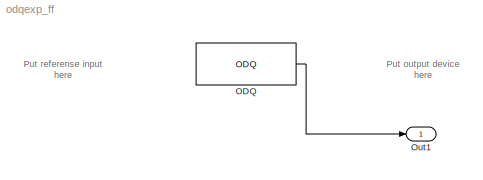
MODEL odqexp_ff
KIND model
BLOCK [Reference] ODQ  REF=odqblock/ODQ  (lib defined in mdl_3284093aac4b)
  A = 0
  B1 = 0
  B2 = 0
  C = 0
  FunctionWithSeparateData = off
  GeneratePreprocessorConditionals = off
  Ports = [1, 1]
  RTWMemSecDataConstants = Inherit from model
  RTWMemSecDataInternal = Inherit from model
  RTWMemSecDataParameters = Inherit from model
  RTWMemSecFuncExecute = Inherit from model
  RTWMemSecFuncInitTerm = Inherit from model
  SID = 2
  ShowPortLabels = FromPortIcon
  SourceBlock = odqblock/ODQ
  SourceType = Opitimal Dynamic Quantizer
  SystemSampleTime = -1
  Ts = Ts
  d = d
BLOCK [Outport] Out1
  IconDisplay = Port number
  SID = 4
ANNOTATION (root): Put output device\nhere
ANNOTATION (root): Put referense input\nhere
LINE ODQ:1 -> Out1:1
